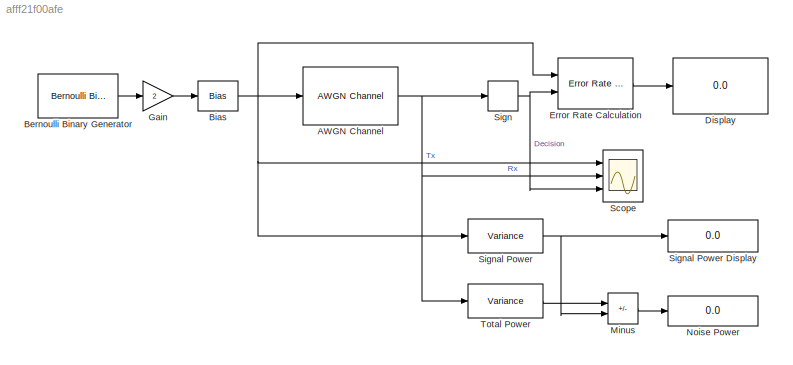
MODEL slx_afff21f00afe
KIND model
CONFIG AbsTol = auto
CONFIG EnableMultiTasking = off
CONFIG FixedStep = auto
CONFIG MaxStep = auto
CONFIG MinStep = auto
CONFIG RelTol = 1e-3
CONFIG SampleTimeConstraint = Unconstrained
CONFIG SolverName = VariableStepAuto
CONFIG StartTime = 0.0
CONFIG StopTime = 100000
BLOCK [Reference] AWGN Channel  REF=commchan3/AWGN
Channel
  Ports = [1, 1]
  SourceBlock = commchan3/AWGN\nChannel
  SourceProductBaseCode = CM
  SourceType = AWGN Channel
  UserDataPersistent = on
BLOCK [Reference] Bernoulli Binary Generator  REF=commrandsrc3/Bernoulli Binary
Generator
  Ports = [0, 1]
  SourceBlock = commrandsrc3/Bernoulli Binary\nGenerator
  SourceProductBaseCode = CM
  SourceType = Bernoulli Binary Generator
BLOCK [Bias] Bias
  Bias = -1
  SaturateOnIntegerOverflow = off
BLOCK [Display] Display
  Decimation = 1
  Ports = [1]
BLOCK [Reference] Error Rate Calculation  REF=commsink2/Error Rate
Calculation
  Ports = [2, 1]
  SourceBlock = commsink2/Error Rate\nCalculation
  SourceProductBaseCode = CM
  SourceType = Error Rate Calculation
BLOCK [Gain] Gain
  Gain = 2
BLOCK [Sum] Minus
  IconShape = rectangular
  Inputs = +-
  Ports = [2, 1]
BLOCK [Display] Noise Power
  Decimation = 1
  Ports = [1]
BLOCK [Scope] Scope
  Floating = off
  NumInputPorts = 3
  Ports = [3]
  ScopeSpecificationString = Simulink.scopes.TimeScopeBlockCfg('CurrentConfiguration', extmgr.ConfigurationSet(extmgr.Configuration('Core','General UI',true),extmgr.Configuration('Core','Source UI',true),extmgr.Configuration('Sources','WiredSimulink',true),extmgr.Configuration('Visuals','Time Domain',true,'SerializedDisplays',{struct('MinYLimReal','-1.25','MaxYLimReal','1.25','YLabelReal','','MinYLimMag','0.00000','MaxYLimMag...<+2736ch>
BLOCK [Signum] Sign
BLOCK [Reference] Signal Power  REF=dspstat3/Variance
  Ports = [1, 1]
  SourceBlock = dspstat3/Variance
  SourceProductBaseCode = DS
  SourceType = Variance
  UserDataPersistent = on
BLOCK [Display] Signal Power Display
  Decimation = 1
  Ports = [1]
BLOCK [Reference] Total Power  REF=dspstat3/Variance
  Ports = [1, 1]
  SourceBlock = dspstat3/Variance
  SourceProductBaseCode = DS
  SourceType = Variance
  UserDataPersistent = on
NET AWGN Channel:1 -> Scope:2, Sign:1, Total Power:1
LINE Bernoulli Binary Generator:1 -> Gain:1
NET Bias:1 -> AWGN Channel:1, Error Rate Calculation:1, Scope:1, Signal Power:1
LINE Error Rate Calculation:1 -> Display:1
LINE Gain:1 -> Bias:1
LINE Minus:1 -> Noise Power:1
NET Sign:1 -> Error Rate Calculation:2, Scope:3
NET Signal Power:1 -> Minus:2, Signal Power Display:1
LINE Total Power:1 -> Minus:1
note: NET lines group one-source signal fan-out (src -> all destinations, sorted); 1:1 wires keep LINE
